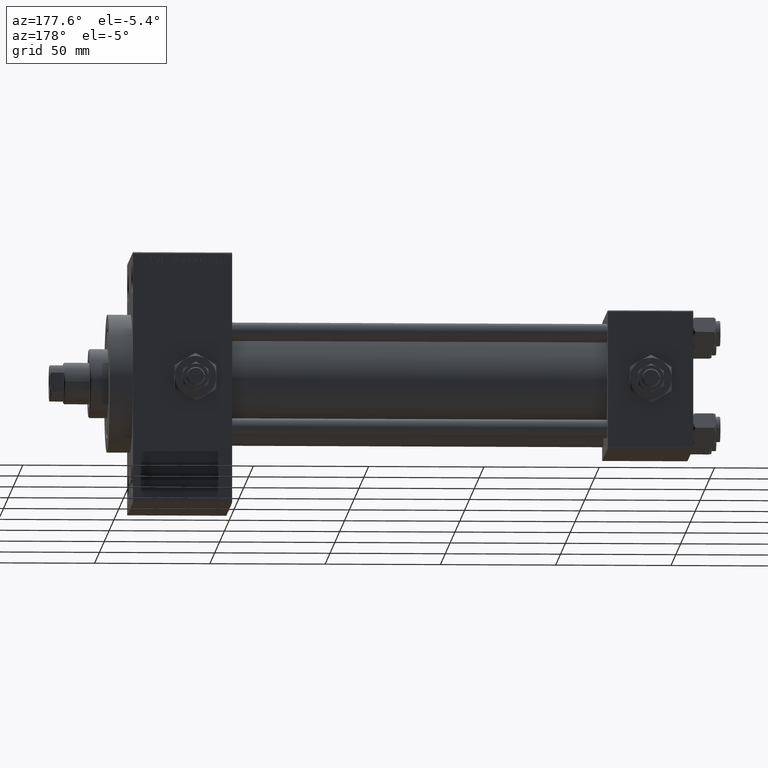
[diagram: clean part render]
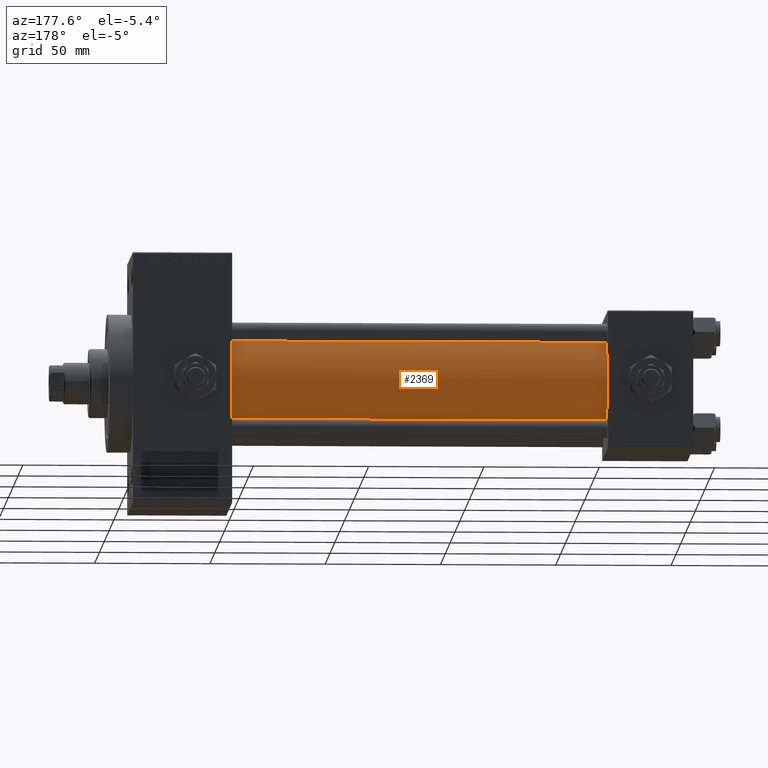
[diagram: same view with one face highlighted and labeled with its STEP entity id]
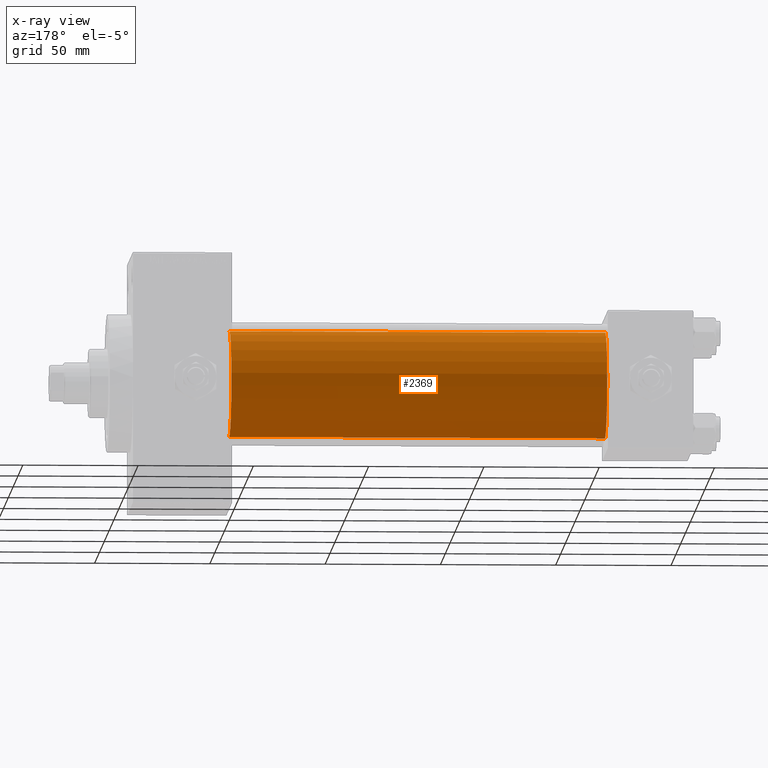
[diagram: x-ray of the same camera — body ghosted, the highlighted face saturated]
A machine part, auxiliary view. The second image highlights one B-rep face of the part: STEP entity #2369.
The next image is the same camera in x-ray: the body ghosted, the highlighted face saturated — about 0% of this face is hidden behind the body in this view.
In plain terms, the highlighted cylindrical surface (partial cylindrical patch) has radius 23 mm, axis along (-1, -0, -0).
Its self-contained STEP definition (entity closure, byte-faithful):
#264 = EDGE_CURVE ( 'NONE', #4418, #18025, #30506, .T. ) ;
#2369 = ADVANCED_FACE ( 'NONE', ( #29293 ), #30038, .T. ) ;
#3747 = ORIENTED_EDGE ( 'NONE', *, *, #20804, .F. ) ;
#4018 = EDGE_LOOP ( 'NONE', ( #3747, #14905, #41742, #5439 ) ) ;
#4418 = VERTEX_POINT ( 'NONE', #22096 ) ;
#4813 = VECTOR ( 'NONE', #6733, 1000.000000000000000 ) ;
#5439 = ORIENTED_EDGE ( 'NONE', *, *, #44460, .F. ) ;
#5673 = AXIS2_PLACEMENT_3D ( 'NONE', #48540, #33290, #44538 ) ;
#6168 = CARTESIAN_POINT ( 'NONE',  ( 200.0000000000000000, -2.602085213965210642E-15, 23.00000000000000000 ) ) ;
#6733 = DIRECTION ( 'NONE',  ( -1.000000000000000000, -0.000000000000000000, -0.000000000000000000 ) ) ;
#7411 = VERTEX_POINT ( 'NONE', #36574 ) ;
#9917 = DIRECTION ( 'NONE',  ( -1.000000000000000000, -0.000000000000000000, -0.000000000000000000 ) ) ;
#10212 = CARTESIAN_POINT ( 'NONE',  ( 37.00000000000000711, 2.146024240737016609E-16, -23.00000000000000000 ) ) ;
#10750 = CARTESIAN_POINT ( 'NONE',  ( 37.00000000000000711, -2.602085213965210642E-15, 23.00000000000000000 ) ) ;
#11352 = EDGE_CURVE ( 'NONE', #18025, #22333, #42744, .T. ) ;
#14758 = AXIS2_PLACEMENT_3D ( 'NONE', #25386, #33384, #18099 ) ;
#14905 = ORIENTED_EDGE ( 'NONE', *, *, #264, .T. ) ;
#18025 = VERTEX_POINT ( 'NONE', #10212 ) ;
#18099 = DIRECTION ( 'NONE',  ( 0.000000000000000000, 0.000000000000000000, 1.000000000000000000 ) ) ;
#20804 = EDGE_CURVE ( 'NONE', #4418, #7411, #47784, .T. ) ;
#21658 = DIRECTION ( 'NONE',  ( 1.000000000000000000, 0.000000000000000000, 0.000000000000000000 ) ) ;
#22096 = CARTESIAN_POINT ( 'NONE',  ( 200.0000000000000000, 2.146024240737016609E-16, -23.00000000000000000 ) ) ;
#22333 = VERTEX_POINT ( 'NONE', #10750 ) ;
#25386 = CARTESIAN_POINT ( 'NONE',  ( 37.00000000000000711, -2.602085213965210642E-15, 0.000000000000000000 ) ) ;
#26019 = CARTESIAN_POINT ( 'NONE',  ( 200.0000000000000000, 2.146024240737016609E-16, -23.00000000000000000 ) ) ;
#29293 = FACE_OUTER_BOUND ( 'NONE', #4018, .T. ) ;
#30038 = CYLINDRICAL_SURFACE ( 'NONE', #5673, 23.00000000000000000 ) ;
#30506 = LINE ( 'NONE', #26019, #4813 ) ;
#33290 = DIRECTION ( 'NONE',  ( -1.000000000000000000, -0.000000000000000000, -0.000000000000000000 ) ) ;
#33384 = DIRECTION ( 'NONE',  ( 1.000000000000000000, -0.000000000000000000, 0.000000000000000000 ) ) ;
#36298 = VECTOR ( 'NONE', #9917, 1000.000000000000000 ) ;
#36574 = CARTESIAN_POINT ( 'NONE',  ( 200.0000000000000000, -2.602085213965210642E-15, 23.00000000000000000 ) ) ;
#40203 = DIRECTION ( 'NONE',  ( 0.000000000000000000, 0.000000000000000000, -1.000000000000000000 ) ) ;
#40674 = CARTESIAN_POINT ( 'NONE',  ( 200.0000000000000000, -2.602085213965210642E-15, 0.000000000000000000 ) ) ;
#40937 = LINE ( 'NONE', #6168, #36298 ) ;
#41742 = ORIENTED_EDGE ( 'NONE', *, *, #11352, .T. ) ;
#42744 = CIRCLE ( 'NONE', #14758, 23.00000000000000000 ) ;
#42951 = AXIS2_PLACEMENT_3D ( 'NONE', #40674, #21658, #40203 ) ;
#44460 = EDGE_CURVE ( 'NONE', #7411, #22333, #40937, .T. ) ;
#44538 = DIRECTION ( 'NONE',  ( 0.000000000000000000, 0.000000000000000000, 1.000000000000000000 ) ) ;
#47784 = CIRCLE ( 'NONE', #42951, 23.00000000000000000 ) ;
#48540 = CARTESIAN_POINT ( 'NONE',  ( 200.0000000000000000, -2.602085213965210642E-15, 0.000000000000000000 ) ) ;